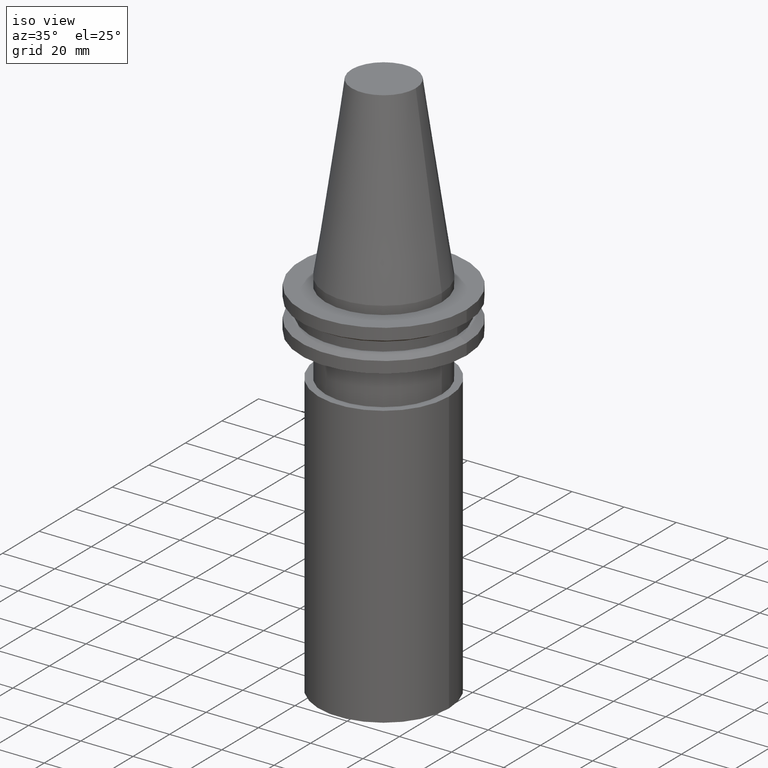
[diagram: clean part render]
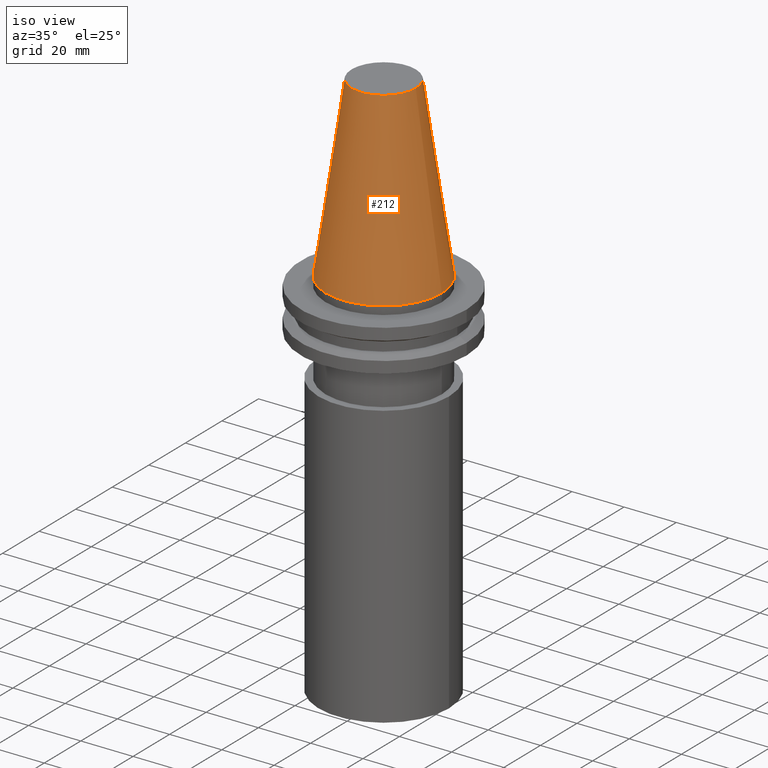
[diagram: same view with one face highlighted and labeled with its STEP entity id]
A machine part, iso view. The second image highlights one B-rep face of the part: STEP entity #212.
In plain terms, the highlighted conical surface has half-angle 8.297 deg.
Its self-contained STEP definition (entity closure, byte-faithful):
#8 = CARTESIAN_POINT ( 'NONE',  ( 0.000000000000000000, 0.000000000000000000, 0.000000000000000000 ) ) ;
#36 = DIRECTION ( 'NONE',  ( -0.000000000000000000, -0.000000000000000000, 1.000000000000000000 ) ) ;
#40 = DIRECTION ( 'NONE',  ( 1.000000000000000000, 0.000000000000000000, 0.000000000000000000 ) ) ;
#41 = DIRECTION ( 'NONE',  ( 1.000000000000000000, 0.000000000000000000, 0.000000000000000000 ) ) ;
#70 = CARTESIAN_POINT ( 'NONE',  ( 0.000000000000000000, 0.000000000000000000, 0.000000000000000000 ) ) ;
#79 = VERTEX_POINT ( 'NONE', #337 ) ;
#81 = CIRCLE ( 'NONE', #89, 22.22500000000000142 ) ;
#84 = VERTEX_POINT ( 'NONE', #181 ) ;
#89 = AXIS2_PLACEMENT_3D ( 'NONE', #8, #189, #40 ) ;
#134 = DIRECTION ( 'NONE',  ( 0.000000000000000000, 0.000000000000000000, -1.000000000000000000 ) ) ;
#154 = AXIS2_PLACEMENT_3D ( 'NONE', #70, #134, #196 ) ;
#181 = CARTESIAN_POINT ( 'NONE',  ( 12.27178102086201150, 0.000000000000000000, 68.25000000000000000 ) ) ;
#189 = DIRECTION ( 'NONE',  ( -0.000000000000000000, -0.000000000000000000, 1.000000000000000000 ) ) ;
#196 = DIRECTION ( 'NONE',  ( -1.000000000000000000, 0.000000000000000000, 0.000000000000000000 ) ) ;
#212 = ADVANCED_FACE ( 'NONE', ( #381, #348 ), #402, .T. ) ;
#226 = CARTESIAN_POINT ( 'NONE',  ( 0.000000000000000000, 0.000000000000000000, 68.25000000000000000 ) ) ;
#227 = EDGE_CURVE ( 'NONE', #79, #79, #81, .T. ) ;
#244 = ORIENTED_EDGE ( 'NONE', *, *, #269, .F. ) ;
#269 = EDGE_CURVE ( 'NONE', #84, #84, #292, .T. ) ;
#292 = CIRCLE ( 'NONE', #396, 12.27178102086201150 ) ;
#297 = EDGE_LOOP ( 'NONE', ( #358 ) ) ;
#337 = CARTESIAN_POINT ( 'NONE',  ( 22.22500000000000142, 0.000000000000000000, 0.000000000000000000 ) ) ;
#348 = FACE_OUTER_BOUND ( 'NONE', #297, .T. ) ;
#358 = ORIENTED_EDGE ( 'NONE', *, *, #227, .T. ) ;
#363 = EDGE_LOOP ( 'NONE', ( #244 ) ) ;
#381 = FACE_BOUND ( 'NONE', #363, .T. ) ;
#396 = AXIS2_PLACEMENT_3D ( 'NONE', #226, #36, #41 ) ;
#402 = CONICAL_SURFACE ( 'NONE', #154, 22.22500000000000142, 0.1448138465474119174 ) ;